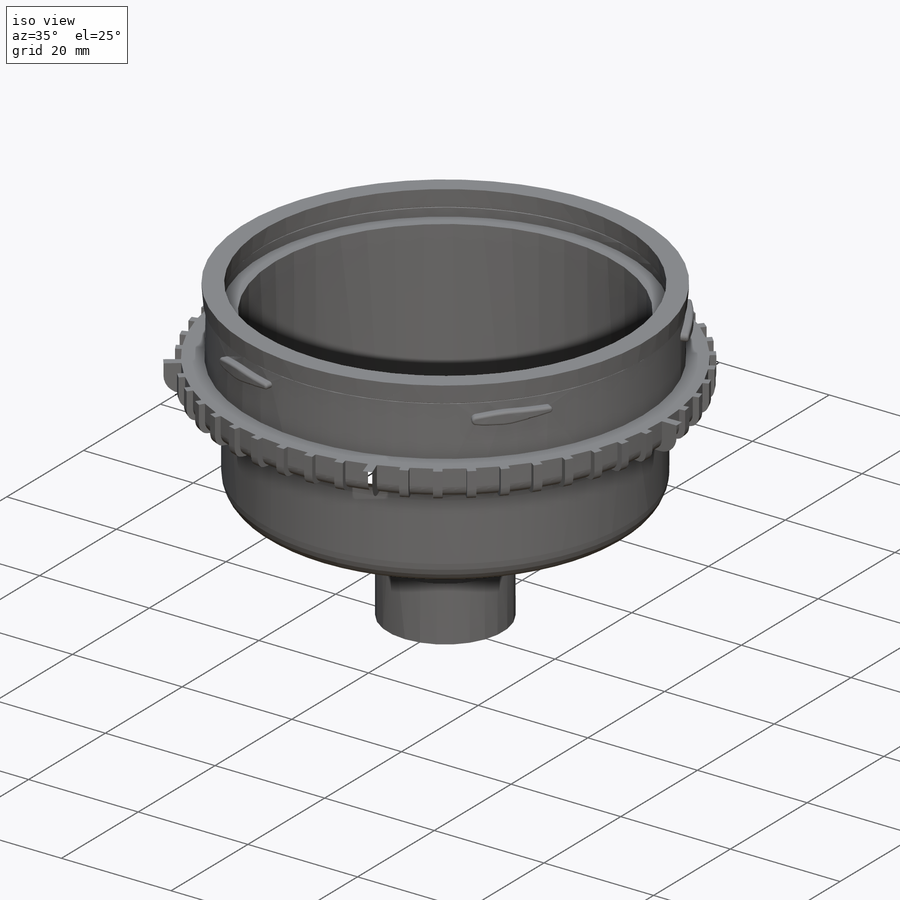
[diagram: iso view]
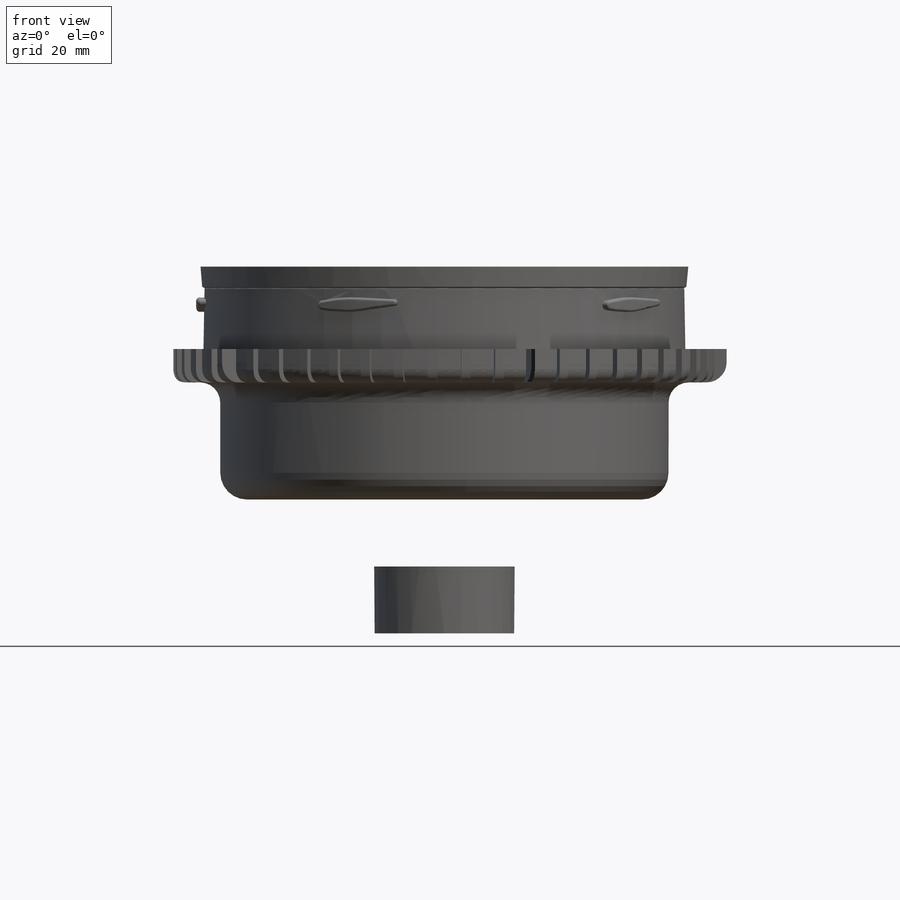
[diagram: front view]
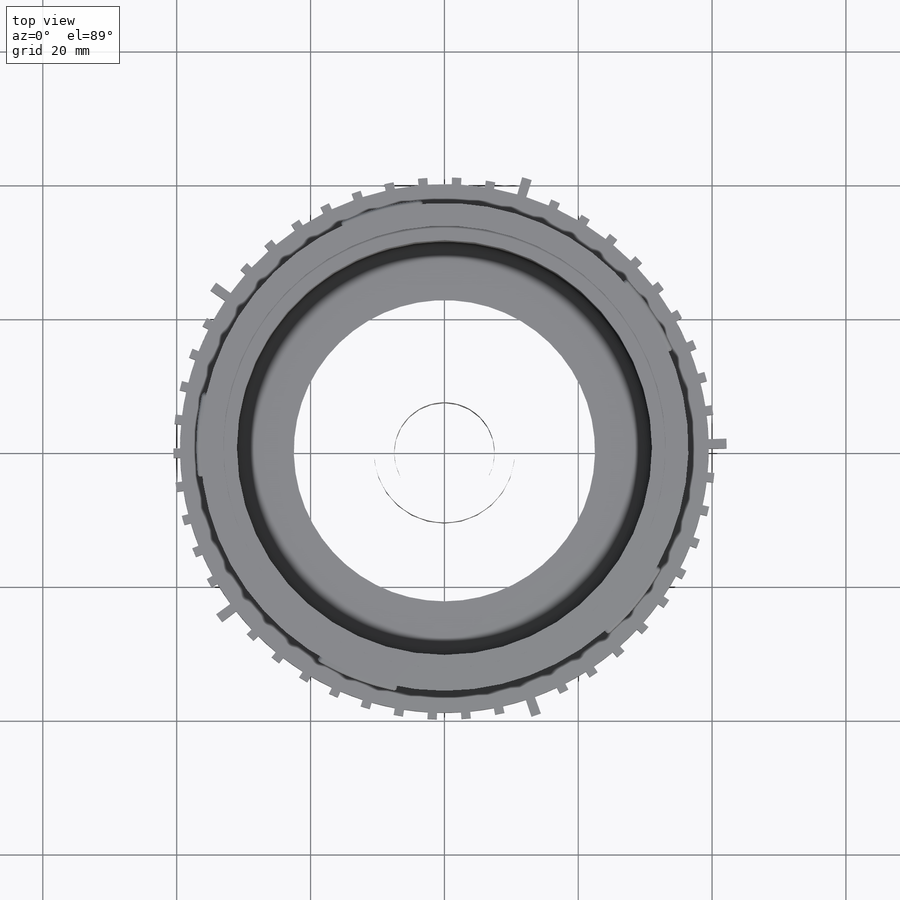
[diagram: top view]
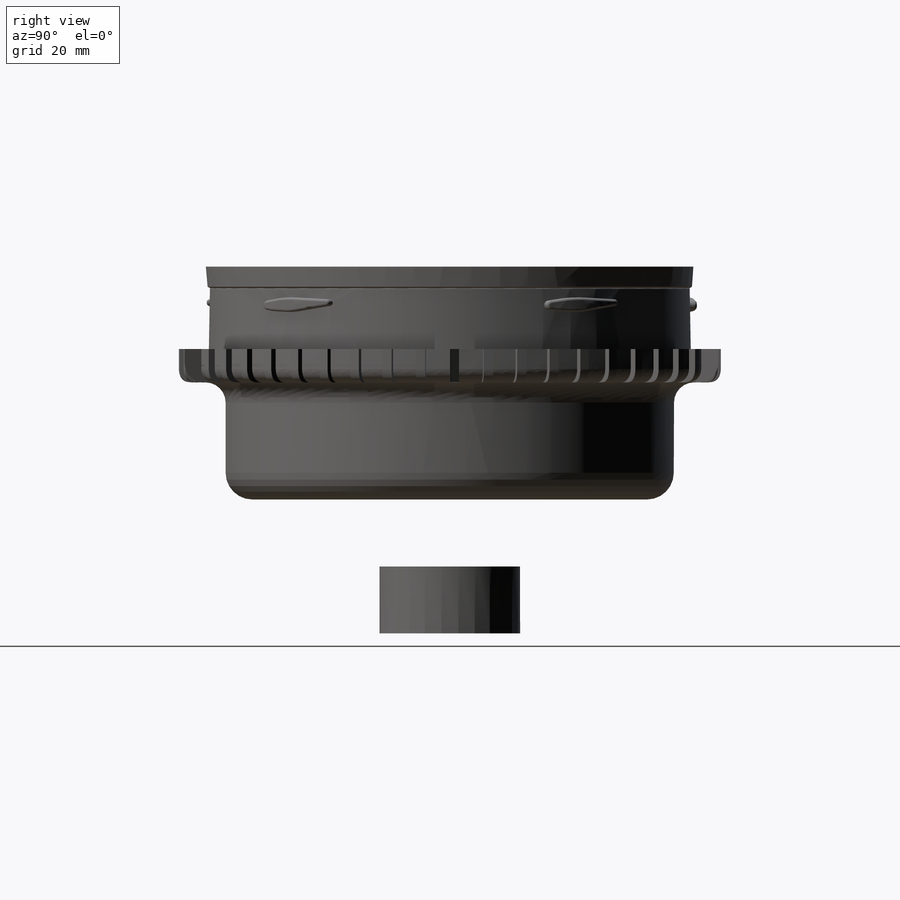
[diagram: right view]
SOLIDWORKS PART (.sldprt)
format: sldprt  version: not decoded by parser v0  size: 2,753,024 bytes
history: native  units: mm
features: sketch x37, shell x19, extrude x10, plane x7, boolean_combine x6, sweep x6, pattern_circular x6, revolve x4, cut_extrude x3, chamfer x3, move_body x2, cut_revolve x2, material x1, fillet x1, helix x1 (+10 scaffold rows collapsed)
feature tree (118):
  scaffold x10  (default folders/planes/origin — collapsed)
  material  "Matériau <non spécifié>"
  plane  "Plan de face"
  plane  "Plan de dessus"
  plane  "Plan de droite"
  sketch  "Esquisse1"  dims[D1=62.0mm]
  extrude  "Boss.-Extru.1"  Depth=20mm
  fillet  "Congé1"  Radius=1.5mm
  shell  "Coque1"  Thickness=2.5mm
  sketch  "Esquisse2"  dims[D1=6.0mm]
  extrude  "Boss.-Extru.2"  Depth=5mm
  sketch  "Esquisse3"  dims[D3=2.5mm D1=2.5mm D2=2.5mm]
  extrude  "Boss.-Extru.3"  Depth=10mm
  sketch  "Esquisse4"
  plane  "Plan1"  Offset=1mm
  sketch  "Esquisse6"  dims[D1=0.15mm]
  sketch  "Esquisse7"
  extrude  "Boss.-Extru.4"  Depth=13.8mm
  sketch  "Esquisse9"  dims[D1=0.15mm]
  extrude  "Boss.-Extru.5"  Depth=13.8mm
  plane  "Plan2"  Offset=1.2mm
  sketch  "Esquisse14"
  sketch  "Esquisse15"
  extrude  "Boss.-Extru.6"  Depth=3.5mm
  move_body  "Corps-Déplacer/Copier1"
  boolean_combine  "Combiner3"
  boolean_combine  "Combiner4"
  boolean_combine  "Combiner1"
  boolean_combine  "Combiner5"
  sketch  "Esquisse16"  dims[D1=0.0mm]
  extrude  "Boss.-Extru.7"  Depth=2.5mm
  sketch  "Esquisse17"  dims[D1=0.0mm]
  cut_extrude  "Enlèv. mat.-Extru.2"  Depth=7mm
  sketch  "Esquisse18"  dims[D1=0.0mm D2=1.0mm]
  extrude  "Boss.-Extru.8"  Depth=7.5mm
  sketch  "Esquisse19"  dims[D1=0.5mm]
  cut_revolve  "Enlèvement de matière-Révolution1"  Angle=360deg
  chamfer  "Chanfrein1"  Distance=1mm Angle=45deg
  shell  "Congé2"  Thickness=3mm
  sketch  "Esquisse20"  dims[D1=0.5mm]
  cut_extrude  "Enlèv. mat.-Extru.3"  Depth=2.5mm
  sketch  "Esquisse23"
  helix  "Hélice/Spirale1"  Pitch=32mm
  sketch  "Esquisse3D1"
  sketch  "Esquisse24"  dims[D1=1.5mm D2=3.0mm]
  sweep  "Enlèvement de matière-Balayage1"
  sketch  "Esquisse25"  dims[D1=0.0mm Hélice/Spirale2=0.0 D3=10.0mm D4=10.0mm D5=1000.0mm D7=1.0deg]
  sketch  "Esquisse3D2"
  plane  "Plan3"  Offset=0mm
  sketch  "Esquisse26"  dims[D1=0.0mm]
  sweep  "Enlèvement de matière-Balayage3"
  sketch  "Esquisse27"  dims[c1.D1=0.4mm c1.D2=0.4mm c1.D3=0.4mm c2.D1=0.4mm]
  sweep  "Balayage1"
  sketch  "Esquisse3D2<4>"
  sketch  "Esquisse3D3"
  plane  "Plan4"
  sketch  "Esquisse38"  dims[D1=0.2mm]
  sweep  "Balayage2"
  sketch  "Esquisse3D4"
  sketch  "Esquisse3D6"
  sweep  "Balayage3"
  sketch  "Esquisse27<3>"
  sweep  "Balayage4"
  sketch  "Esquisse38<2>"
  boolean_combine  "Combiner7"
  shell  "Congé4"  Thickness=20mm
  shell  "Congé5"  Thickness=1mm
  shell  "Congé6"  Thickness=0.5mm
  shell  "Congé7"  Thickness=100mm
  shell  "Congé10"  Thickness=4mm
  sketch  "Esquisse28"
  pattern_circular  "Répétition circulaire1"  Count=5 Angle=360deg
  chamfer  "Chanfrein2"  Distance=0.2mm Angle=45deg
  shell  "Congé20"  Thickness=1mm
  shell  "Congé21"  Thickness=0.5mm
  chamfer  "Chanfrein5"  Distance=1mm
  shell  "Congé27"  Thickness=10mm
  shell  "Congé28"  Thickness=10mm
  shell  "Congé29"  Thickness=0.7mm
  shell  "Congé30"  Thickness=0.4mm
  move_body  "Corps-Déplacer/Copier2"
  pattern_circular  "Répétition circulaire13"  Count=5 Angle=360deg
  boolean_combine  "Combiner10"
  sketch  "Esquisse29"  dims[D1=15.0mm]
  cut_extrude  "Enlèv. mat.-Extru.4"  [1 undecoded]
  sketch  "Esquisse30"  dims[D1=3.0mm]
  extrude  "Boss.-Extru.9"  Depth=20mm
  sketch  "Esquisse31"  dims[D1=0.0mm D2=0.0mm]
  extrude  "Boss.-Extru.10"  Depth=20mm
  shell  "Congé11"  Thickness=10mm
  shell  "Congé12"  Thickness=10mm
  shell  "Congé13"  Thickness=2mm
  sketch  "Esquisse32"  dims[D1=1.0mm]
  revolve  "Révolution1"  Angle=2deg
  shell  "Congé14"  Thickness=4mm
  pattern_circular  "Répétition circulaire4"  Count=50 Angle=7.2deg
  shell  "Congé15"  Thickness=15mm
  shell  "Congé16"  Thickness=15mm
  sketch  "Esquisse33"  dims[D1=~1.142927mm]
  revolve  "Révolution2"  Angle=2deg
  pattern_circular  "Répétition circulaire5"  Count=50 Angle=7.2deg
  sketch  "Esquisse34"  dims[D1=4.0mm]
  revolve  "Révolution3"  Angle=2deg
  pattern_circular  "Répétition circulaire10"  Count=5 Angle=360deg
  sketch  "Esquisse35"  dims[D1=3.0mm]
  revolve  "Révolution4"  Angle=2deg
  pattern_circular  "Répétition circulaire12"  Count=5 Angle=72deg
  sketch  "Esquisse37"  dims[c1.D1=0.02mm c1.D2=0.02mm c1.D3=0.4mm c2.D1=0.02mm]
  cut_revolve  "Enlèvement de matière-Révolution2"  Angle=360deg
decode coverage: 71 of 100 modeling features carry decoded parameters
note: ~ marks probable driven/reference dimensions
note: 1 parameter value undecoded
summary: profile_refs inferred from adjacent sketches, not decoded
note: suppression state not decoded; provenance and decode notes live in map.json
